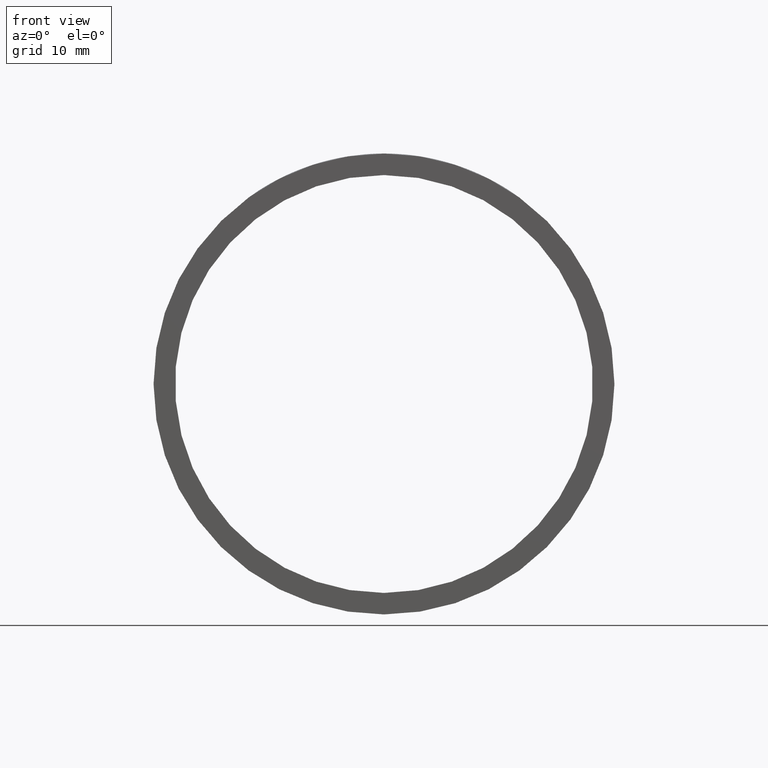
[diagram: clean part render]
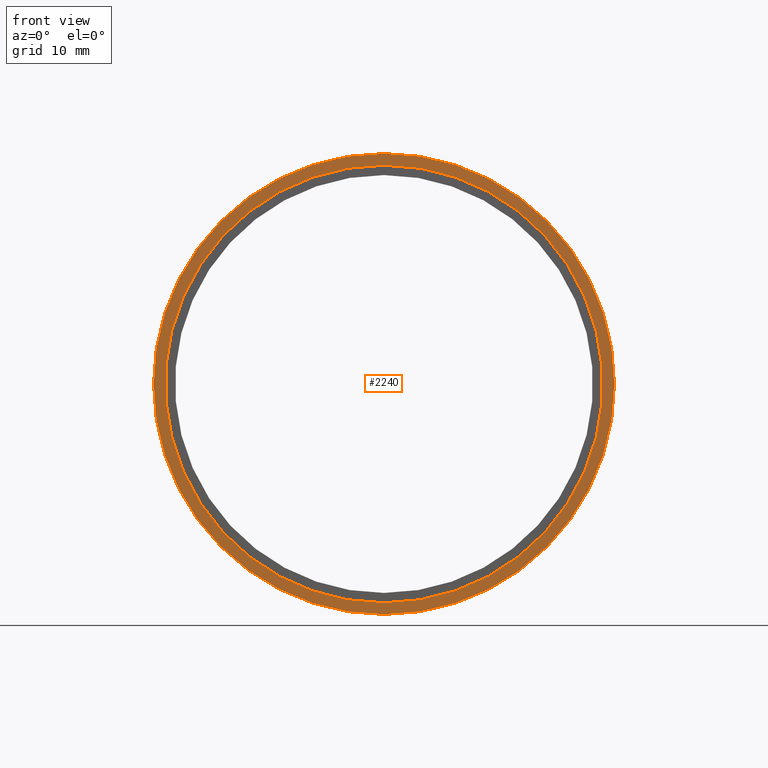
[diagram: same view with one face highlighted and labeled with its STEP entity id]
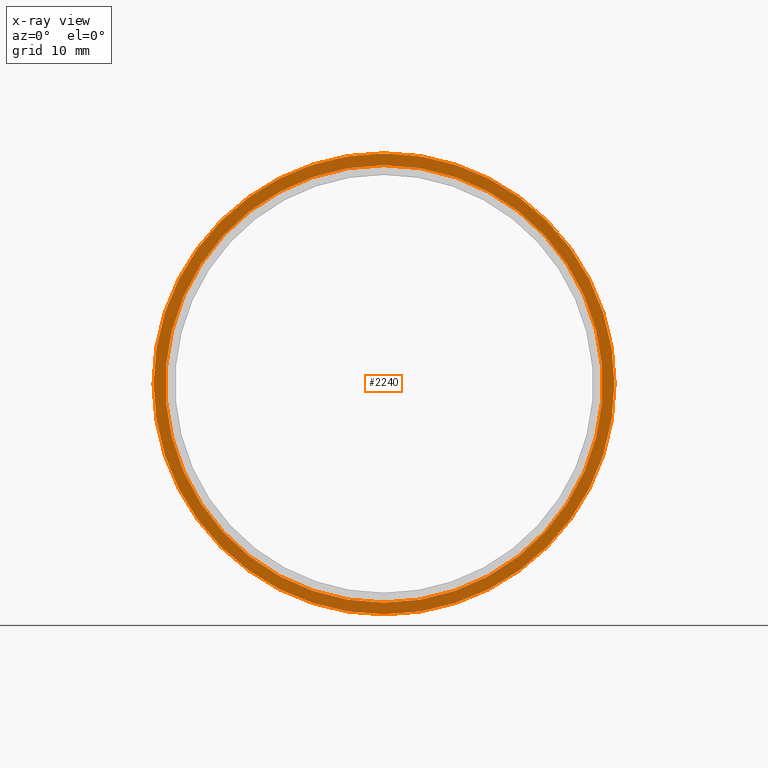
[diagram: x-ray of the same camera — body ghosted, the highlighted face saturated]
A machine part, front view. The second image highlights one B-rep face of the part: STEP entity #2240.
The next image is the same camera in x-ray: the body ghosted, the highlighted face saturated — about 0% of this face is hidden behind the body in this view.
In plain terms, the highlighted planar face has unit normal (0, 1, 0).
Its self-contained STEP definition (entity closure, byte-faithful):
#14 = EDGE_CURVE ( 'NONE', #7002, #16262, #2121, .T. ) ;
#248 = CIRCLE ( 'NONE', #8074, 35.60000000000218279 ) ;
#2003 = VERTEX_POINT ( 'NONE', #5508 ) ;
#2121 = CIRCLE ( 'NONE', #2666, 37.50000000000008527 ) ;
#2240 = ADVANCED_FACE ( 'NONE', ( #2915, #4009 ), #13057, .F. ) ;
#2645 = CARTESIAN_POINT ( 'NONE',  ( 4.592425496802585411E-15, 1.201941862066846500, 37.50000000000008527 ) ) ;
#2657 = EDGE_CURVE ( 'NONE', #2003, #6366, #248, .T. ) ;
#2666 = AXIS2_PLACEMENT_3D ( 'NONE', #9845, #9925, #11181 ) ;
#2915 = FACE_BOUND ( 'NONE', #15807, .T. ) ;
#3247 = CARTESIAN_POINT ( 'NONE',  ( 0.0000000000000000000, 1.201941862066846500, -37.50000000000008527 ) ) ;
#3419 = ORIENTED_EDGE ( 'NONE', *, *, #14, .T. ) ;
#4009 = FACE_OUTER_BOUND ( 'NONE', #9791, .T. ) ;
#4639 = CARTESIAN_POINT ( 'NONE',  ( 0.0000000000000000000, 1.201941862066846500, 0.0000000000000000000 ) ) ;
#4688 = ORIENTED_EDGE ( 'NONE', *, *, #12060, .T. ) ;
#4900 = AXIS2_PLACEMENT_3D ( 'NONE', #4639, #6083, #11206 ) ;
#4943 = DIRECTION ( 'NONE',  ( -0.0000000000000000000, -1.000000000000000000, -0.0000000000000000000 ) ) ;
#5508 = CARTESIAN_POINT ( 'NONE',  ( 4.359742604964845640E-15, 1.201941862066846500, 35.60000000000218279 ) ) ;
#5629 = DIRECTION ( 'NONE',  ( 0.0000000000000000000, 1.000000000000000000, 0.0000000000000000000 ) ) ;
#6083 = DIRECTION ( 'NONE',  ( -0.0000000000000000000, -1.000000000000000000, -0.0000000000000000000 ) ) ;
#6366 = VERTEX_POINT ( 'NONE', #16214 ) ;
#6527 = DIRECTION ( 'NONE',  ( 0.0000000000000000000, 0.0000000000000000000, -1.000000000000000000 ) ) ;
#7002 = VERTEX_POINT ( 'NONE', #3247 ) ;
#7464 = DIRECTION ( 'NONE',  ( 0.0000000000000000000, 0.0000000000000000000, -1.000000000000000000 ) ) ;
#7687 = ORIENTED_EDGE ( 'NONE', *, *, #7930, .F. ) ;
#7710 = CARTESIAN_POINT ( 'NONE',  ( 0.0000000000000000000, 1.201941862066846500, 0.0000000000000000000 ) ) ;
#7930 = EDGE_CURVE ( 'NONE', #6366, #2003, #15357, .T. ) ;
#8074 = AXIS2_PLACEMENT_3D ( 'NONE', #14624, #11666, #6527 ) ;
#8089 = AXIS2_PLACEMENT_3D ( 'NONE', #7710, #4943, #7464 ) ;
#8155 = DIRECTION ( 'NONE',  ( 0.0000000000000000000, -0.0000000000000000000, 1.000000000000000000 ) ) ;
#8401 = ORIENTED_EDGE ( 'NONE', *, *, #2657, .F. ) ;
#9791 = EDGE_LOOP ( 'NONE', ( #3419, #4688 ) ) ;
#9845 = CARTESIAN_POINT ( 'NONE',  ( 0.0000000000000000000, 1.201941862066846500, 0.0000000000000000000 ) ) ;
#9925 = DIRECTION ( 'NONE',  ( -0.0000000000000000000, -1.000000000000000000, -0.0000000000000000000 ) ) ;
#10217 = AXIS2_PLACEMENT_3D ( 'NONE', #15752, #5629, #8155 ) ;
#11181 = DIRECTION ( 'NONE',  ( 0.0000000000000000000, 0.0000000000000000000, -1.000000000000000000 ) ) ;
#11206 = DIRECTION ( 'NONE',  ( 0.0000000000000000000, 0.0000000000000000000, -1.000000000000000000 ) ) ;
#11666 = DIRECTION ( 'NONE',  ( -0.0000000000000000000, -1.000000000000000000, -0.0000000000000000000 ) ) ;
#12060 = EDGE_CURVE ( 'NONE', #16262, #7002, #12172, .T. ) ;
#12172 = CIRCLE ( 'NONE', #4900, 37.50000000000008527 ) ;
#13057 = PLANE ( 'NONE',  #10217 ) ;
#14624 = CARTESIAN_POINT ( 'NONE',  ( 0.0000000000000000000, 1.201941862066846500, 0.0000000000000000000 ) ) ;
#15357 = CIRCLE ( 'NONE', #8089, 35.60000000000218279 ) ;
#15752 = CARTESIAN_POINT ( 'NONE',  ( -35.60000000000218279, 1.201941862066846500, 0.0000000000000000000 ) ) ;
#15807 = EDGE_LOOP ( 'NONE', ( #7687, #8401 ) ) ;
#16214 = CARTESIAN_POINT ( 'NONE',  ( 0.0000000000000000000, 1.201941862066846500, -35.60000000000218279 ) ) ;
#16262 = VERTEX_POINT ( 'NONE', #2645 ) ;